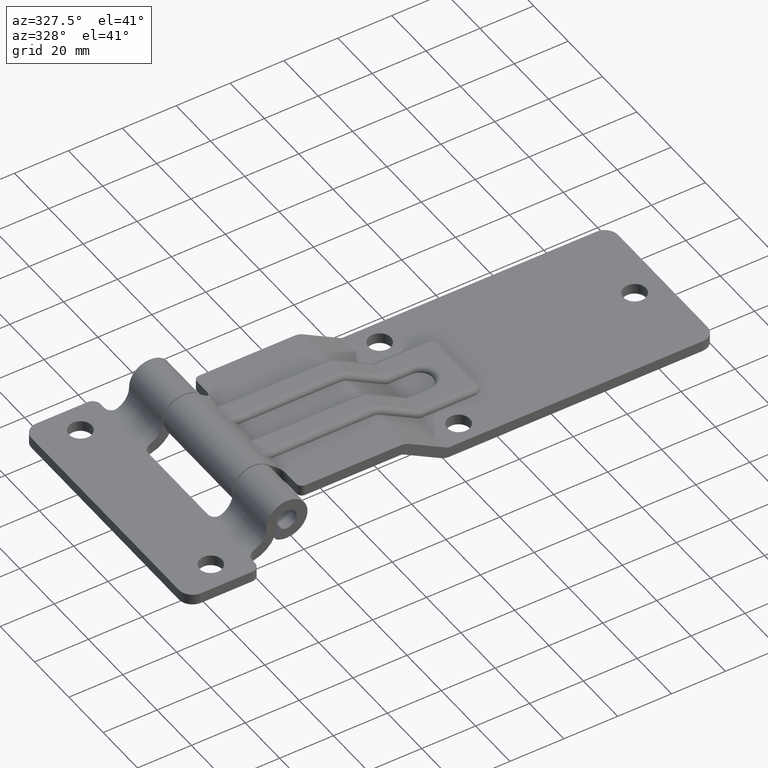
[diagram: clean part render]
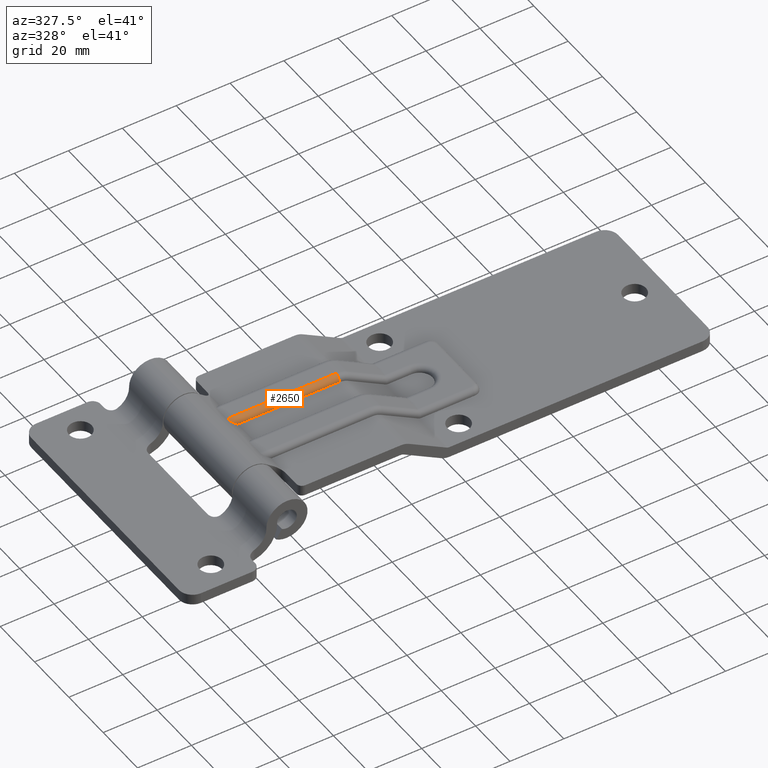
[diagram: same view with one face highlighted and labeled with its STEP entity id]
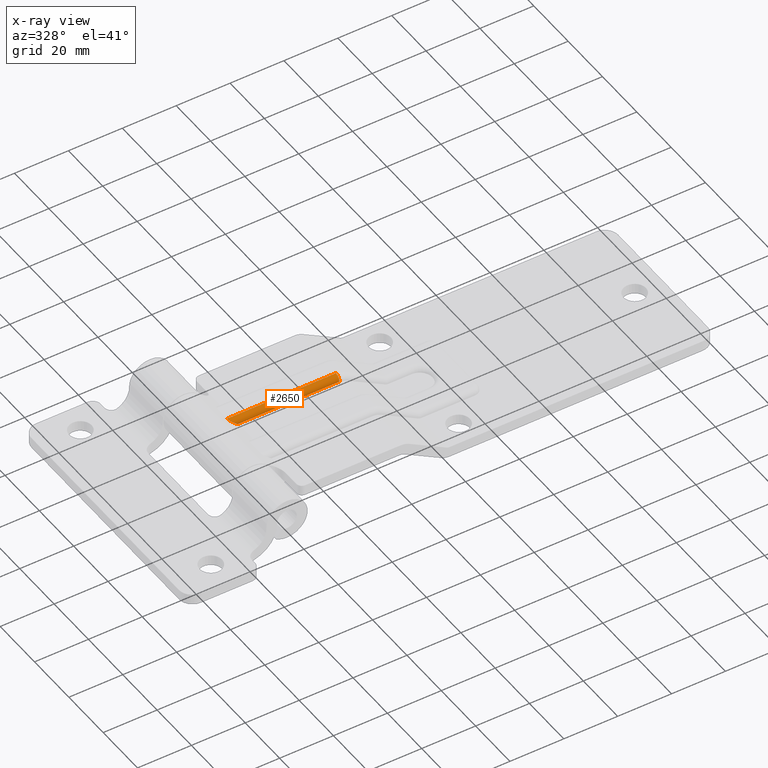
[diagram: x-ray of the same camera — body ghosted, the highlighted face saturated]
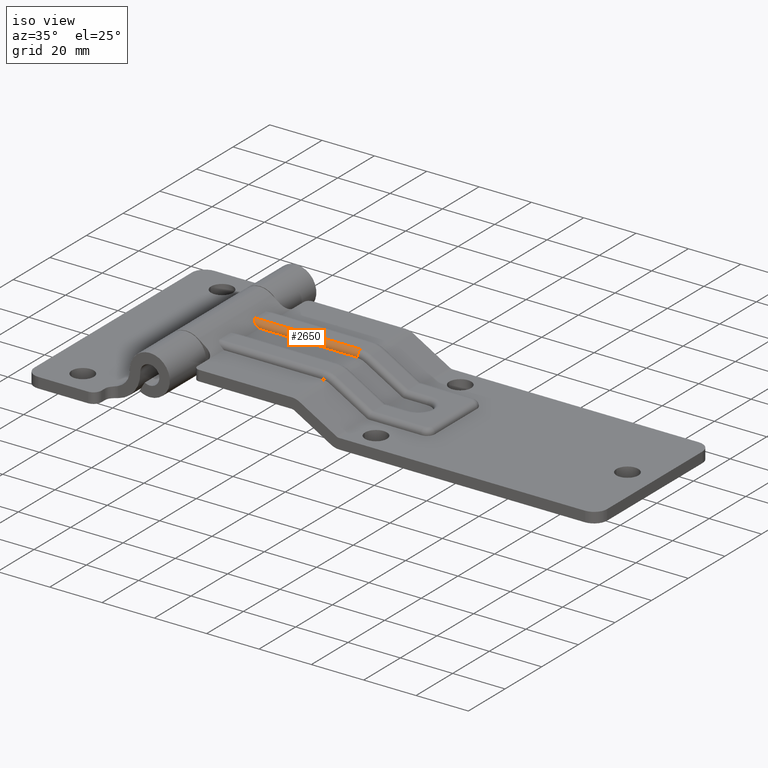
[diagram: same view with one face highlighted and labeled with its STEP entity id]
A machine part, auxiliary view. The second image highlights one B-rep face of the part: STEP entity #2650.
The next image is the same camera in x-ray: the body ghosted, the highlighted face saturated — about 0% of this face is hidden behind the body in this view.
A second angle (iso view) of the same face is appended — the face is thin or edge-on in the first view.
In plain terms, the highlighted cylindrical surface (edge-blend (fillet) strip) has radius 2 mm, axis along (1, 0, -0).
Its self-contained STEP definition (entity closure, byte-faithful):
#63 = FACE_OUTER_BOUND ( 'NONE', #1638, .T. ) ;
#248 = VERTEX_POINT ( 'NONE', #3856 ) ;
#270 = LINE ( 'NONE', #3207, #1758 ) ;
#328 = AXIS2_PLACEMENT_3D ( 'NONE', #3601, #3701, #3822 ) ;
#466 = CIRCLE ( 'NONE', #3727, 2.000000000000000000 ) ;
#522 = CARTESIAN_POINT ( 'NONE',  ( -0.2674202846327045600, 4.750000000000000000, 4.200000000000001100 ) ) ;
#528 = CARTESIAN_POINT ( 'NONE',  ( -1.833932043474387500, 4.749999999999998200, 5.371572875253811200 ) ) ;
#539 = CARTESIAN_POINT ( 'NONE',  ( -2.941623130959802900, 6.750000000000001800, 6.200000000000002000 ) ) ;
#565 = CARTESIAN_POINT ( 'NONE',  ( -2.941623130959805500, 5.578427124746189800, 6.200000000000003700 ) ) ;
#1044 = VERTEX_POINT ( 'NONE', #4257 ) ;
#1291 = VERTEX_POINT ( 'NONE', #4180 ) ;
#1373 = DIRECTION ( 'NONE',  ( 0.0000000000000000000, 0.0000000000000000000, -1.000000000000000000 ) ) ;
#1376 = DIRECTION ( 'NONE',  ( 1.000000000000000000, 0.0000000000000000000, -0.0000000000000000000 ) ) ;
#1379 = CARTESIAN_POINT ( 'NONE',  ( 37.46410161513775700, 6.750000000000000000, 4.199999999999998400 ) ) ;
#1408 = DIRECTION ( 'NONE',  ( 1.000000000000000000, 0.0000000000000000000, -8.367351074325423900E-017 ) ) ;
#1417 = CARTESIAN_POINT ( 'NONE',  ( -4.000000000000000000, 6.750000000000000000, 6.200000000000002000 ) ) ;
#1638 = EDGE_LOOP ( 'NONE', ( #4356, #1963, #3442, #3226 ) ) ;
#1650 = EDGE_CURVE ( 'NONE', #3992, #248, #270, .T. ) ;
#1758 = VECTOR ( 'NONE', #3181, 1000.000000000000000 ) ;
#1963 = ORIENTED_EDGE ( 'NONE', *, *, #3595, .T. ) ;
#2650 = ADVANCED_FACE ( 'NONE', ( #63 ), #3732, .T. ) ;
#3181 = DIRECTION ( 'NONE',  ( -1.000000000000000000, -0.0000000000000000000, 8.367351074325423900E-017 ) ) ;
#3207 = CARTESIAN_POINT ( 'NONE',  ( 55.54256258422036300, 4.750000000000000000, 4.199999999999997500 ) ) ;
#3226 = ORIENTED_EDGE ( 'NONE', *, *, #3406, .F. ) ;
#3391 = EDGE_CURVE ( 'NONE', #1291, #1044, #3560, .T. ) ;
#3406 = EDGE_CURVE ( 'NONE', #1044, #3992, #466, .T. ) ;
#3442 = ORIENTED_EDGE ( 'NONE', *, *, #1650, .F. ) ;
#3507 = VECTOR ( 'NONE', #1408, 1000.000000000000000 ) ;
#3560 = LINE ( 'NONE', #1417, #3507 ) ;
#3574 = CARTESIAN_POINT ( 'NONE',  ( 37.46410161513775700, 4.750000000000000000, 4.199999999999999300 ) ) ;
#3595 = EDGE_CURVE ( 'NONE', #1291, #248, #4452, .T. ) ;
#3601 = CARTESIAN_POINT ( 'NONE',  ( -4.000000000000000000, 6.750000000000000000, 4.200000000000002000 ) ) ;
#3701 = DIRECTION ( 'NONE',  ( 1.000000000000000000, 0.0000000000000000000, -8.367351074325423900E-017 ) ) ;
#3727 = AXIS2_PLACEMENT_3D ( 'NONE', #1379, #1376, #1373 ) ;
#3732 = CYLINDRICAL_SURFACE ( 'NONE', #328, 2.000000000000000000 ) ;
#3822 = DIRECTION ( 'NONE',  ( 0.0000000000000000000, 0.0000000000000000000, -1.000000000000000000 ) ) ;
#3856 = CARTESIAN_POINT ( 'NONE',  ( -0.2674202846327045600, 4.750000000000000000, 4.200000000000001100 ) ) ;
#3992 = VERTEX_POINT ( 'NONE', #3574 ) ;
#4180 = CARTESIAN_POINT ( 'NONE',  ( -2.941623130959802900, 6.750000000000001800, 6.200000000000002000 ) ) ;
#4257 = CARTESIAN_POINT ( 'NONE',  ( 37.46410161513775700, 6.750000000000001800, 6.199999999999998400 ) ) ;
#4356 = ORIENTED_EDGE ( 'NONE', *, *, #3391, .F. ) ;
#4452 =( BOUNDED_CURVE ( )  B_SPLINE_CURVE ( 3, ( #539, #565, #528, #522 ),
 .UNSPECIFIED., .F., .F. ) 
 B_SPLINE_CURVE_WITH_KNOTS ( ( 4, 4 ),
 ( 3.141592653589792200, 4.712388980384691500 ),
 .UNSPECIFIED. ) 
 CURVE ( )  GEOMETRIC_REPRESENTATION_ITEM ( )  RATIONAL_B_SPLINE_CURVE ( ( 1.000000000000000000, 0.8047378541243643800, 0.8047378541243643800, 1.000000000000000000 ) ) 
 REPRESENTATION_ITEM ( '' )  );